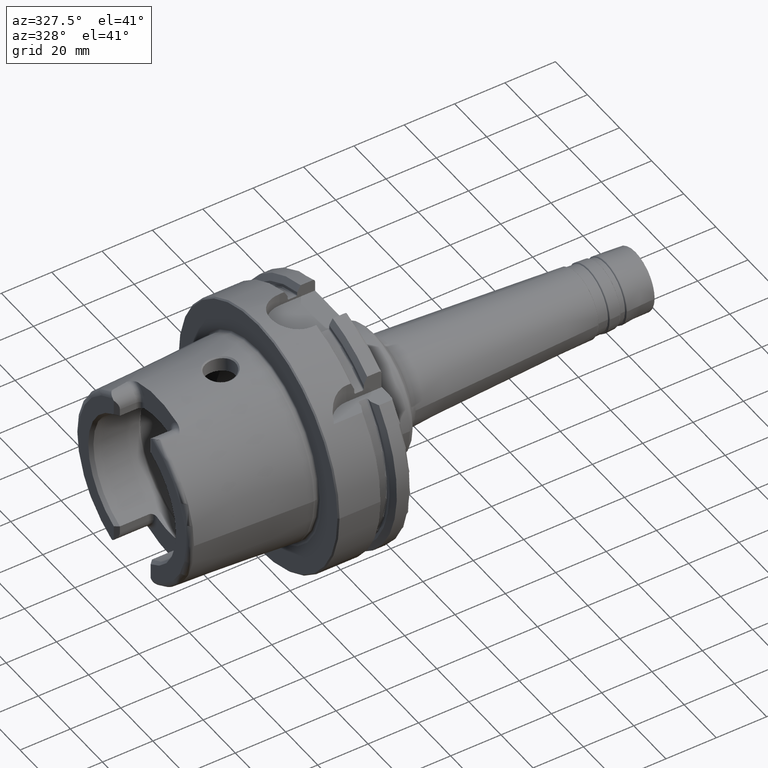
[diagram: clean part render]
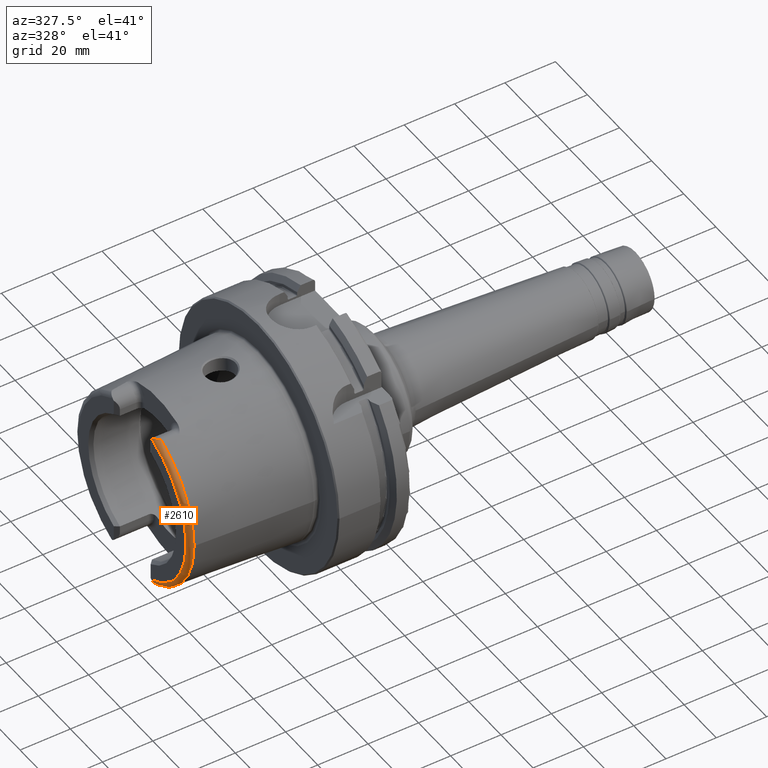
[diagram: same view with one face highlighted and labeled with its STEP entity id]
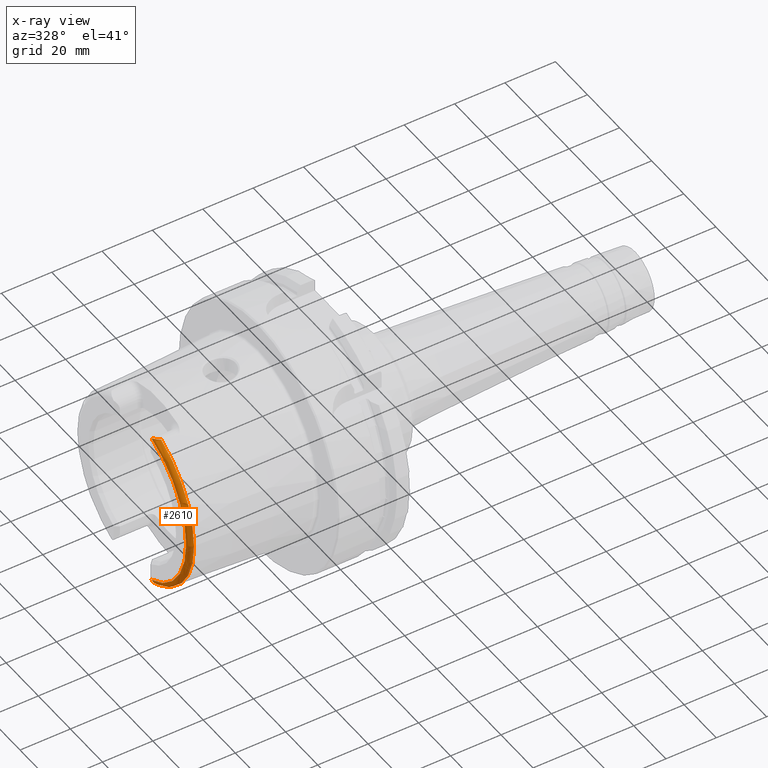
[diagram: x-ray of the same camera — body ghosted, the highlighted face saturated]
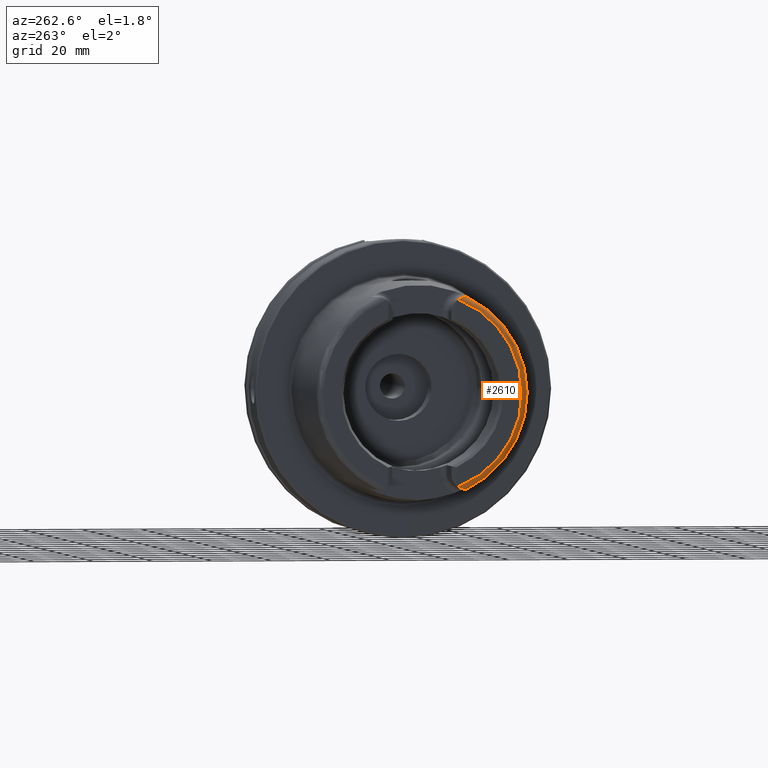
[diagram: same view with one face highlighted and labeled with its STEP entity id]
A machine part, auxiliary view. The second image highlights one B-rep face of the part: STEP entity #2610.
The next image is the same camera in x-ray: the body ghosted, the highlighted face saturated — about 0% of this face is hidden behind the body in this view.
A second angle (auxiliary view) of the same face is appended — the face is thin or edge-on in the first view.
In plain terms, the highlighted toroidal blend (fillet) surface has major radius 33.6002 mm and minor (blend) radius 2 mm.
Its self-contained STEP definition (entity closure, byte-faithful):
#33=B_SPLINE_CURVE_WITH_KNOTS('',3,(#4219,#4220,#4221,#4222,#4223,#4224,
#4225,#4226,#4227,#4228,#4229,#4230),.UNSPECIFIED.,.F.,.F.,(4,2,2,2,2,4),
(-0.744571126726518,-0.701342830888641,-0.656522678464628,-0.531122919946975,
-0.406784567241786,-0.320835419118986),.UNSPECIFIED.);
#84=B_SPLINE_CURVE_WITH_KNOTS('',3,(#5462,#5463,#5464,#5465,#5466,#5467,
#5468,#5469,#5470,#5471,#5472,#5473),.UNSPECIFIED.,.F.,.F.,(4,2,2,2,2,4),
(-0.330531435638092,-0.267908000768824,-0.159978118105095,-0.0786368985358016,
-0.0319888850382436,0.),.UNSPECIFIED.);
#533=FACE_OUTER_BOUND('',#674,.T.);
#674=EDGE_LOOP('',(#2296,#2297,#2298,#2299,#2300));
#815=CIRCLE('',#2810,33.6001839277785);
#822=CIRCLE('',#2827,35.5976786130245);
#826=CIRCLE('',#2831,35.5976786130245);
#1048=VERTEX_POINT('',#4200);
#1049=VERTEX_POINT('',#4202);
#1054=VERTEX_POINT('',#4218);
#1070=VERTEX_POINT('',#4439);
#1071=VERTEX_POINT('',#4441);
#1369=EDGE_CURVE('',#1049,#1048,#815,.T.);
#1377=EDGE_CURVE('',#1054,#1049,#33,.T.);
#1398=EDGE_CURVE('',#1070,#1071,#822,.T.);
#1411=EDGE_CURVE('',#1054,#1070,#826,.T.);
#1582=EDGE_CURVE('',#1048,#1071,#84,.T.);
#2296=ORIENTED_EDGE('',*,*,#1377,.T.);
#2297=ORIENTED_EDGE('',*,*,#1369,.T.);
#2298=ORIENTED_EDGE('',*,*,#1582,.T.);
#2299=ORIENTED_EDGE('',*,*,#1398,.F.);
#2300=ORIENTED_EDGE('',*,*,#1411,.F.);
#2498=TOROIDAL_SURFACE('',#2950,33.6001839277785,2.);
#2610=ADVANCED_FACE('',(#533),#2498,.T.);
#2810=AXIS2_PLACEMENT_3D('',#4203,#3360,#3361);
#2827=AXIS2_PLACEMENT_3D('',#4442,#3406,#3407);
#2831=AXIS2_PLACEMENT_3D('',#4569,#3414,#3415);
#2950=AXIS2_PLACEMENT_3D('',#5461,#3712,#3713);
#3360=DIRECTION('center_axis',(1.,0.,0.));
#3361=DIRECTION('ref_axis',(0.,0.,-1.));
#3406=DIRECTION('center_axis',(1.,0.,0.));
#3407=DIRECTION('ref_axis',(0.,0.,-1.));
#3414=DIRECTION('center_axis',(1.,0.,0.));
#3415=DIRECTION('ref_axis',(0.,0.,-1.));
#3712=DIRECTION('center_axis',(1.,0.,0.));
#3713=DIRECTION('ref_axis',(0.,0.,-1.));
#4200=CARTESIAN_POINT('',(-50.,-12.0743049948301,-31.355757348091));
#4202=CARTESIAN_POINT('',(-50.,-12.0743049948301,31.355757348091));
#4203=CARTESIAN_POINT('Origin',(-50.,0.,0.));
#4218=CARTESIAN_POINT('',(-48.1000748840304,-15.0787152148571,32.2463497175327));
#4219=CARTESIAN_POINT('Ctrl Pts',(-48.1000748840304,-15.0787152148571,32.2463497175327));
#4220=CARTESIAN_POINT('Ctrl Pts',(-48.2106037175751,-15.0644627457708,32.2469012894916));
#4221=CARTESIAN_POINT('Ctrl Pts',(-48.3154292138326,-15.0273539899824,32.2483385926998));
#4222=CARTESIAN_POINT('Ctrl Pts',(-48.5163157198425,-14.9224481921473,32.2501843906849));
#4223=CARTESIAN_POINT('Ctrl Pts',(-48.6121978837474,-14.8534224082598,32.2504380645671));
#4224=CARTESIAN_POINT('Ctrl Pts',(-48.945264184207,-14.5689466462258,32.2439376039327));
#4225=CARTESIAN_POINT('Ctrl Pts',(-49.1880723127852,-14.2607780319834,32.2227822574558));
#4226=CARTESIAN_POINT('Ctrl Pts',(-49.6101150709732,-13.5547183211213,32.0774653757186));
#4227=CARTESIAN_POINT('Ctrl Pts',(-49.7793847368059,-13.1765954395989,31.957165019384));
#4228=CARTESIAN_POINT('Ctrl Pts',(-49.9574602860506,-12.5580264083439,31.6658578550016));
#4229=CARTESIAN_POINT('Ctrl Pts',(-50.,-12.3091419271059,31.5216553492714));
#4230=CARTESIAN_POINT('Ctrl Pts',(-50.,-12.0743049948301,31.355757348091));
#4439=CARTESIAN_POINT('',(-48.1000748840304,-35.5976786130245,-4.35945831705167E-15));
#4441=CARTESIAN_POINT('',(-48.1000748840304,-15.0787152148571,-32.2463497175327));
#4442=CARTESIAN_POINT('Origin',(-48.1000748840304,0.,0.));
#4569=CARTESIAN_POINT('Origin',(-48.1000748840304,0.,0.));
#5461=CARTESIAN_POINT('Origin',(-48.,0.,0.));
#5462=CARTESIAN_POINT('Ctrl Pts',(-50.,-12.0743049948301,-31.355757348091));
#5463=CARTESIAN_POINT('Ctrl Pts',(-50.,-12.2858381230511,-31.5051926299064));
#5464=CARTESIAN_POINT('Ctrl Pts',(-49.9653696826563,-12.5170331398669,-31.6430588255455));
#5465=CARTESIAN_POINT('Ctrl Pts',(-49.7810065498998,-13.1911222585011,-31.9692156023964));
#5466=CARTESIAN_POINT('Ctrl Pts',(-49.5806767805337,-13.6194685503754,-32.0969374367804));
#5467=CARTESIAN_POINT('Ctrl Pts',(-49.1716377200869,-14.2730899346346,-32.2192774131036));
#5468=CARTESIAN_POINT('Ctrl Pts',(-48.9774936618895,-14.5201969661755,-32.2395201073332));
#5469=CARTESIAN_POINT('Ctrl Pts',(-48.6675943633755,-14.8125911006811,-32.2505512851489));
#5470=CARTESIAN_POINT('Ctrl Pts',(-48.5398374959924,-14.912197389574,-32.2504544601106));
#5471=CARTESIAN_POINT('Ctrl Pts',(-48.3063803700173,-15.0305209025154,-32.2482139663407));
#5472=CARTESIAN_POINT('Ctrl Pts',(-48.2058276135777,-15.0650786147019,-32.2468774553032));
#5473=CARTESIAN_POINT('Ctrl Pts',(-48.1000748840304,-15.0787152148571,-32.2463497175327));